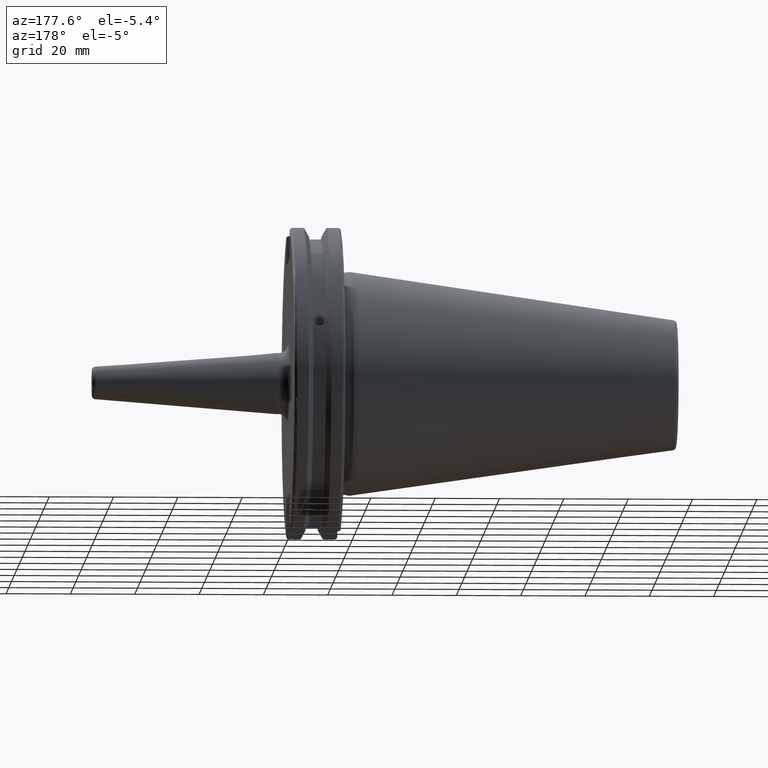
[diagram: clean part render]
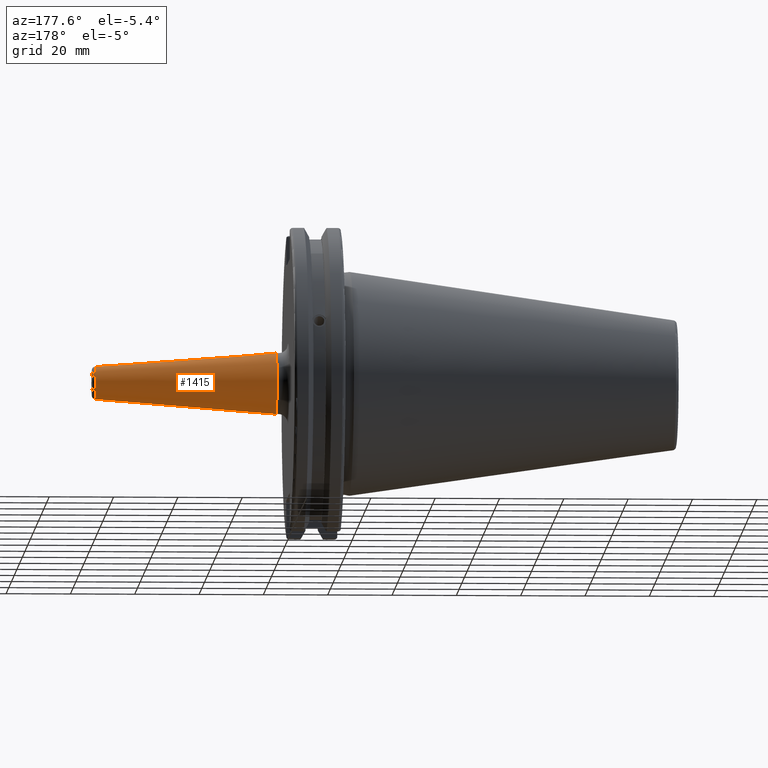
[diagram: same view with one face highlighted and labeled with its STEP entity id]
A machine part, auxiliary view. The second image highlights one B-rep face of the part: STEP entity #1415.
In plain terms, the highlighted conical surface has half-angle 4.5 deg.
Its self-contained STEP definition (entity closure, byte-faithful):
#150=LINE('',#2093,#242);
#242=VECTOR('',#1690,7.25);
#334=CONICAL_SURFACE('',#1525,7.25,0.0785398163397448);
#349=FACE_OUTER_BOUND('',#432,.T.);
#432=EDGE_LOOP('',(#973,#974,#975,#976,#977));
#534=CIRCLE('',#1523,5.07252684207492);
#535=CIRCLE('',#1524,5.07252684207492);
#536=CIRCLE('',#1526,9.5);
#604=VERTEX_POINT('',#2086);
#605=VERTEX_POINT('',#2088);
#606=VERTEX_POINT('',#2092);
#751=EDGE_CURVE('',#604,#605,#534,.T.);
#752=EDGE_CURVE('',#605,#604,#535,.T.);
#753=EDGE_CURVE('',#605,#606,#150,.T.);
#754=EDGE_CURVE('',#606,#606,#536,.T.);
#973=ORIENTED_EDGE('',*,*,#752,.F.);
#974=ORIENTED_EDGE('',*,*,#753,.T.);
#975=ORIENTED_EDGE('',*,*,#754,.T.);
#976=ORIENTED_EDGE('',*,*,#753,.F.);
#977=ORIENTED_EDGE('',*,*,#751,.F.);
#1415=ADVANCED_FACE('',(#349),#334,.T.);
#1523=AXIS2_PLACEMENT_3D('',#2089,#1684,#1685);
#1524=AXIS2_PLACEMENT_3D('',#2090,#1686,#1687);
#1525=AXIS2_PLACEMENT_3D('',#2091,#1688,#1689);
#1526=AXIS2_PLACEMENT_3D('',#2094,#1691,#1692);
#1684=DIRECTION('center_axis',(1.,0.,0.));
#1685=DIRECTION('ref_axis',(0.,-1.,3.06161699786838E-17));
#1686=DIRECTION('center_axis',(1.,0.,0.));
#1687=DIRECTION('ref_axis',(0.,-1.,3.06161699786838E-17));
#1688=DIRECTION('center_axis',(-1.,0.,0.));
#1689=DIRECTION('ref_axis',(0.,1.,0.));
#1690=DIRECTION('',(-0.996917333733128,-0.0784590957278449,-9.60846804471011E-18));
#1691=DIRECTION('center_axis',(1.,0.,0.));
#1692=DIRECTION('ref_axis',(0.,0.,-1.));
#2086=CARTESIAN_POINT('',(79.0784590957279,-6.21205376073608E-16,5.07252684207492));
#2088=CARTESIAN_POINT('',(79.0784590957279,-5.07252684207492,-6.21205376073608E-16));
#2089=CARTESIAN_POINT('Origin',(79.0784590957279,0.,-7.7650672009201E-16));
#2090=CARTESIAN_POINT('Origin',(79.0784590957279,0.,-7.7650672009201E-16));
#2091=CARTESIAN_POINT('Origin',(51.4110393436069,0.,0.));
#2092=CARTESIAN_POINT('',(22.8220786872138,-9.5,-1.16341445918999E-15));
#2093=CARTESIAN_POINT('',(51.4110393436069,-7.25,-8.87868929381831E-16));
#2094=CARTESIAN_POINT('Origin',(22.8220786872139,0.,0.));